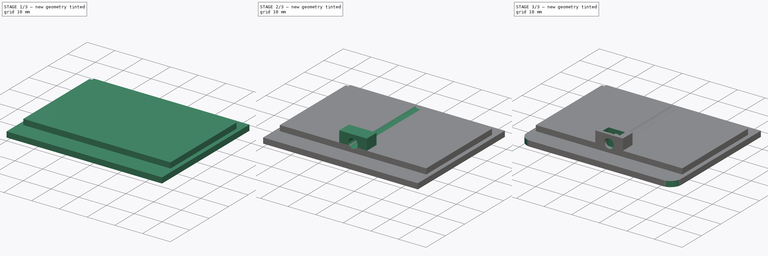
[diagram: build sequence overview — one tinted view per stage of 3, left to right]
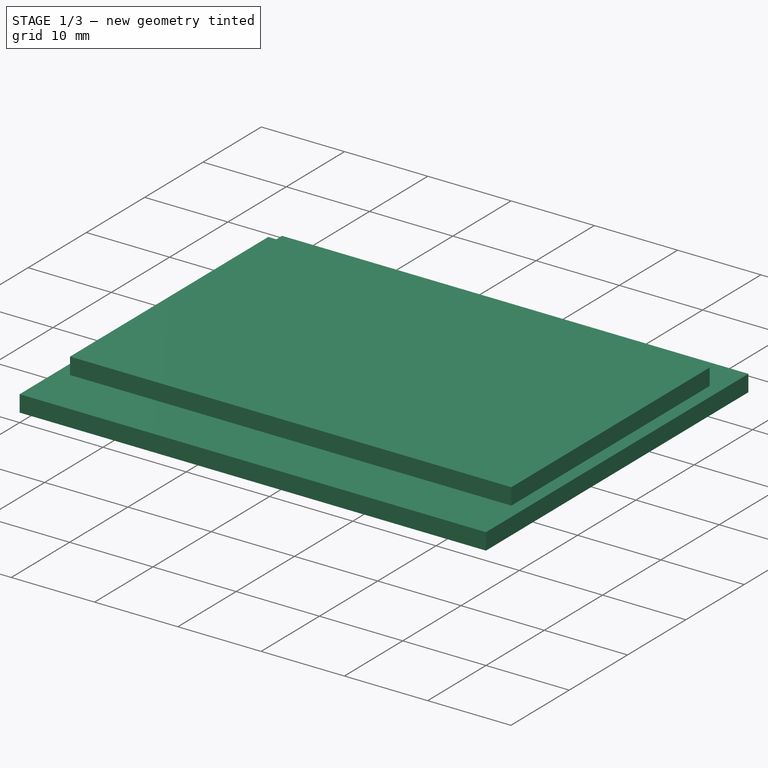
[diagram: stage 1 of 3 — iso view after this stage's code; geometry added in this stage tinted green]
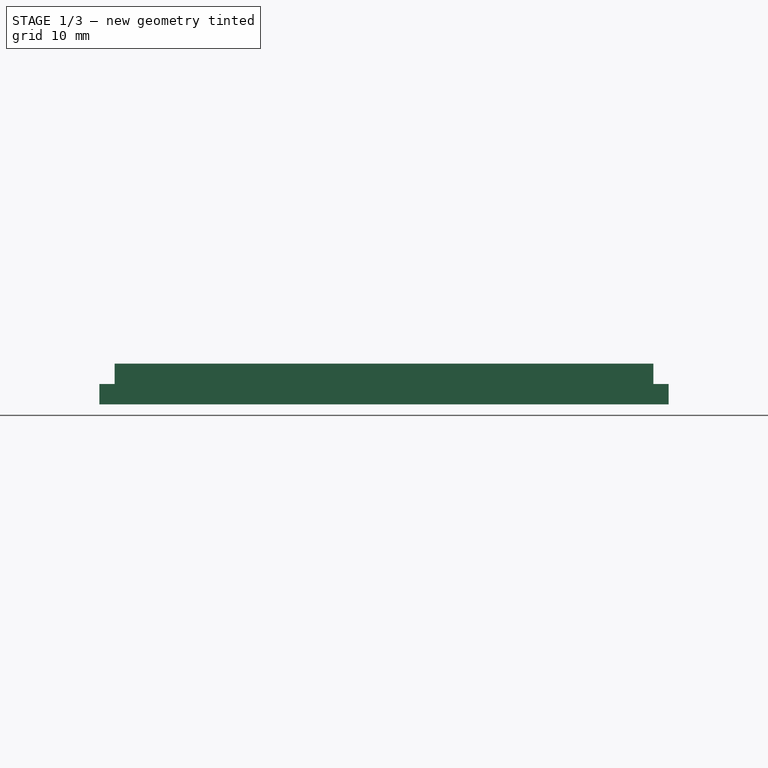
[diagram: stage 1 of 3 — front view after this stage's code; geometry added in this stage tinted green]
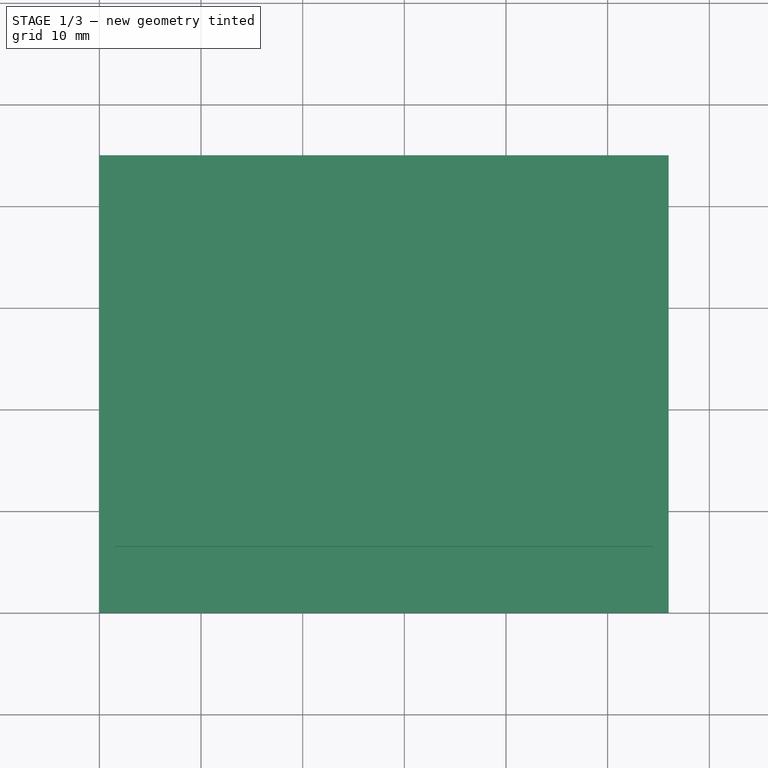
[diagram: stage 1 of 3 — top view after this stage's code; geometry added in this stage tinted green]
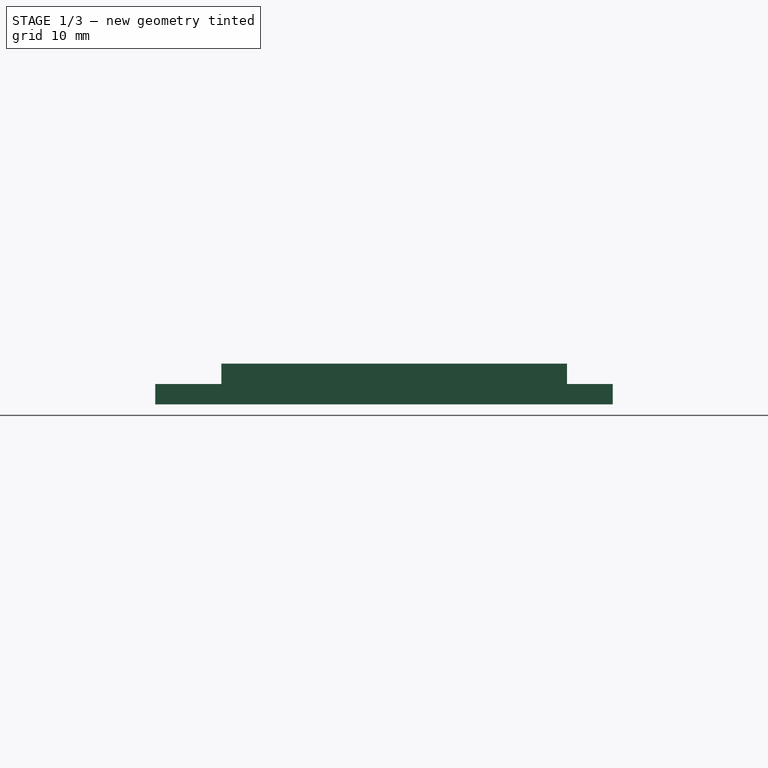
[diagram: stage 1 of 3 — right view after this stage's code; geometry added in this stage tinted green]
FCSTD DOCUMENT  (FreeCAD 0.17R13541 (Git))
Label: Tapa
License: All rights reserved
LicenseURL: http://en.wikipedia.org/wiki/All_rights_reserved
objects: Sketcher::SketchObject×5, PartDesign::Pad×3, PartDesign::Pocket×2, PartDesign::Fillet×1, PartDesign::Body×1
note: 17 computed .brp shape members not serialized (recipe doc carries the construction recipe); baked Part::Feature solids carry a one-line shape summary decoded from their .brp

FEATURE [Sketcher::SketchObject] Sketch
  MapMode = 5
  Support = -> [XY_Plane]
  sketch-geometry (4):
    g0: LineSegment StartX=0 StartY=0 StartZ=0 EndX=56 EndY=0 EndZ=0
    g1: LineSegment StartX=56 StartY=0 StartZ=0 EndX=56 EndY=45 EndZ=0
    g2: LineSegment StartX=56 StartY=45 StartZ=0 EndX=0 EndY=45 EndZ=0
    g3: LineSegment StartX=0 StartY=45 StartZ=0 EndX=0 EndY=0 EndZ=0
  constraints (11):
    c: Coincident(g0,g1)
    c: Coincident(g1,g2)
    c: Coincident(g2,g3)
    c: Coincident(g3,g0)
    c: Horizontal(g0)
    c: Horizontal(g2)
    c: Vertical(g1)
    c: Vertical(g3)
    c: Coincident(g0,g-1)
    c: DistanceX(g0,g0) = 56
    c: DistanceY(g1,g1) = 45
FEATURE [PartDesign::Pad] Pad  label="Base"
  Length = 2
  Length2 = 100
  Midplane = true
  Profile = -> Sketch
  Type = 0
FEATURE [Sketcher::SketchObject] Sketch001
  MapMode = 5
  Placement = pos=(0,0,1) rot=(0,0,1;0rad)
  Support = -> [Pad]
  sketch-geometry (4):
    g0: LineSegment StartX=1.5 StartY=40.5 StartZ=0 EndX=54.5 EndY=40.5 EndZ=0
    g1: LineSegment StartX=54.5 StartY=40.5 StartZ=0 EndX=54.5 EndY=6.5 EndZ=0
    g2: LineSegment StartX=54.5 StartY=6.5 StartZ=0 EndX=1.5 EndY=6.5 EndZ=0
    g3: LineSegment StartX=1.5 StartY=6.5 StartZ=0 EndX=1.5 EndY=40.5 EndZ=0
  constraints (12):
    c: Coincident(g0,g1)
    c: Coincident(g1,g2)
    c: Coincident(g2,g3)
    c: Coincident(g3,g0)
    c: Horizontal(g0)
    c: Horizontal(g2)
    c: Vertical(g1)
    c: Vertical(g3)
    c: DistanceY(g1,g1) = 34
    c: DistanceX(g0,g0) = 53
    c: DistanceY(g-1,g2) = 6.5
    c: DistanceX(g-1,g2) = 1.5
FEATURE [PartDesign::Pad] Pad001  label="Tope"
  BaseFeature = -> Pad
  Length = 2
  Length2 = 100
  Profile = -> Sketch001
  Type = 0
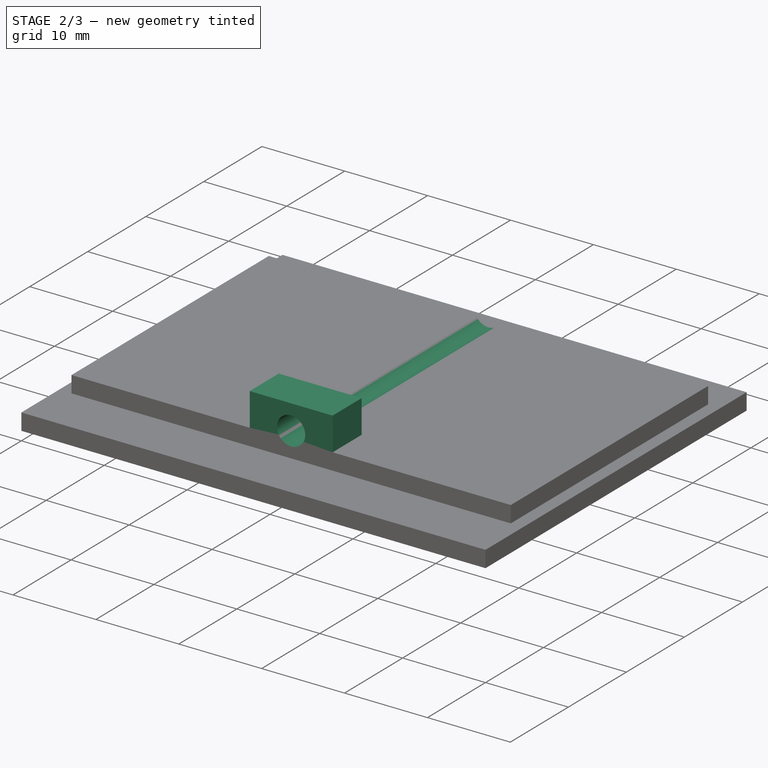
[diagram: stage 2 of 3 — iso view after this stage's code; geometry added in this stage tinted green]
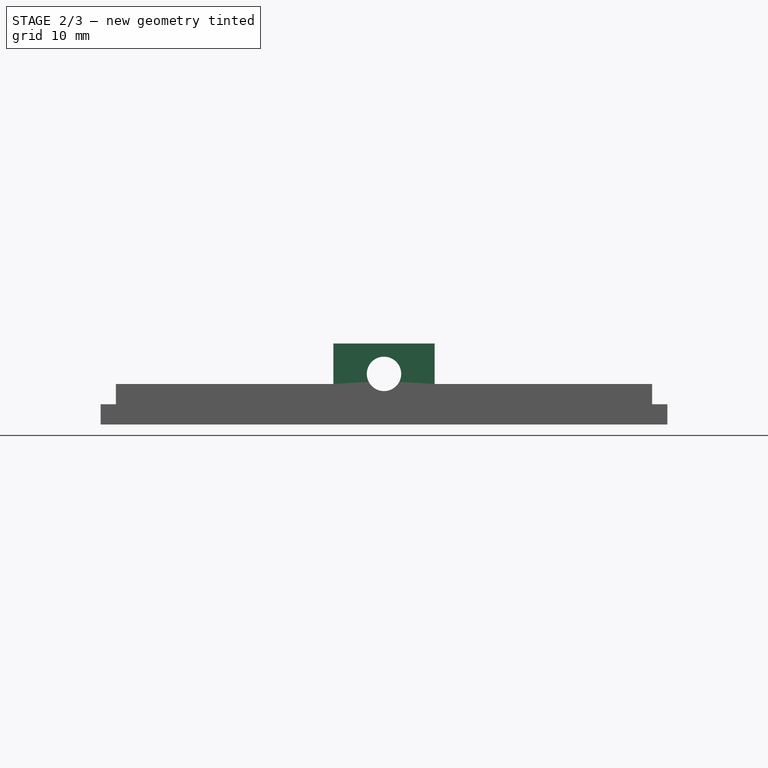
[diagram: stage 2 of 3 — front view after this stage's code; geometry added in this stage tinted green]
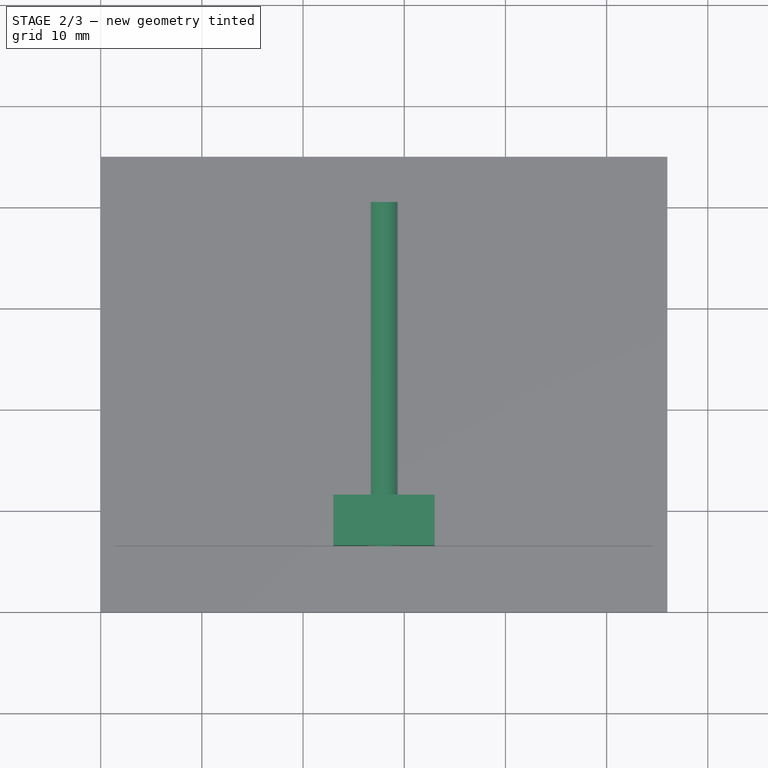
[diagram: stage 2 of 3 — top view after this stage's code; geometry added in this stage tinted green]
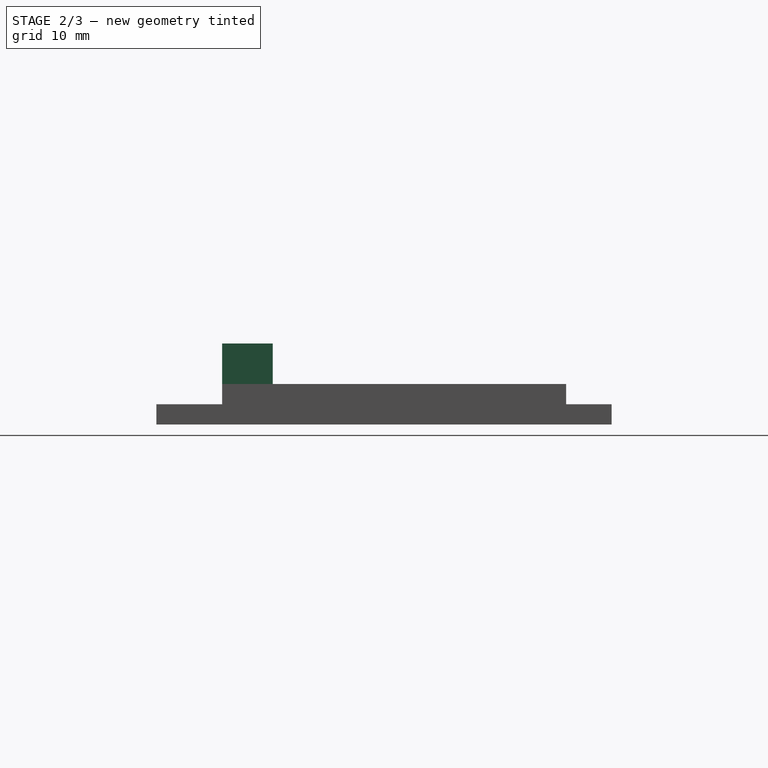
[diagram: stage 2 of 3 — right view after this stage's code; geometry added in this stage tinted green]
FEATURE [Sketcher::SketchObject] Sketch002
  MapMode = 5
  Placement = pos=(0,0,3) rot=(0,0,1;0rad)
  Support = -> [Pad001]
  sketch-geometry (4):
    g0: LineSegment StartX=23 StartY=11.5 StartZ=0 EndX=33 EndY=11.5 EndZ=0
    g1: LineSegment StartX=33 StartY=11.5 StartZ=0 EndX=33 EndY=6.5 EndZ=0
    g2: LineSegment StartX=33 StartY=6.5 StartZ=0 EndX=23 EndY=6.5 EndZ=0
    g3: LineSegment StartX=23 StartY=6.5 StartZ=0 EndX=23 EndY=11.5 EndZ=0
  constraints (12):
    c: Coincident(g0,g1)
    c: Coincident(g1,g2)
    c: Coincident(g2,g3)
    c: Coincident(g3,g0)
    c: Horizontal(g0)
    c: Horizontal(g2)
    c: Vertical(g1)
    c: Vertical(g3)
    c: DistanceX(g0,g0) = 10
    c: DistanceY(g3,g3) = 5
    c: DistanceY(g-1,g2) = 6.5
    c: DistanceX(g-1,g2) = 23
FEATURE [PartDesign::Pad] Pad002  label="Bloque"
  BaseFeature = -> Pad001
  Length = 4
  Length2 = 100
  Profile = -> Sketch002
  Type = 0
FEATURE [Sketcher::SketchObject] Sketch003
  MapMode = 5
  Placement = pos=(0,6.5,0) rot=(1,0,0;1.5708rad)
  Support = -> [Pad002]
  sketch-geometry (1):
    g0: Circle CenterX=28 CenterY=4 CenterZ=0 NormalX=0 NormalY=0 NormalZ=1 AngleXU=0 Radius=1.7
  constraints (3):
    c: DistanceX(g-1,g0) = 28
    c: DistanceY(g-1,g0) = 4
    c: Radius(g0) = 1.7
FEATURE [PartDesign::Pocket] Pocket  label="Tornillo"
  BaseFeature = -> Pad002
  Length = 20
  Length2 = 100
  Profile = -> Sketch003
  Type = 1
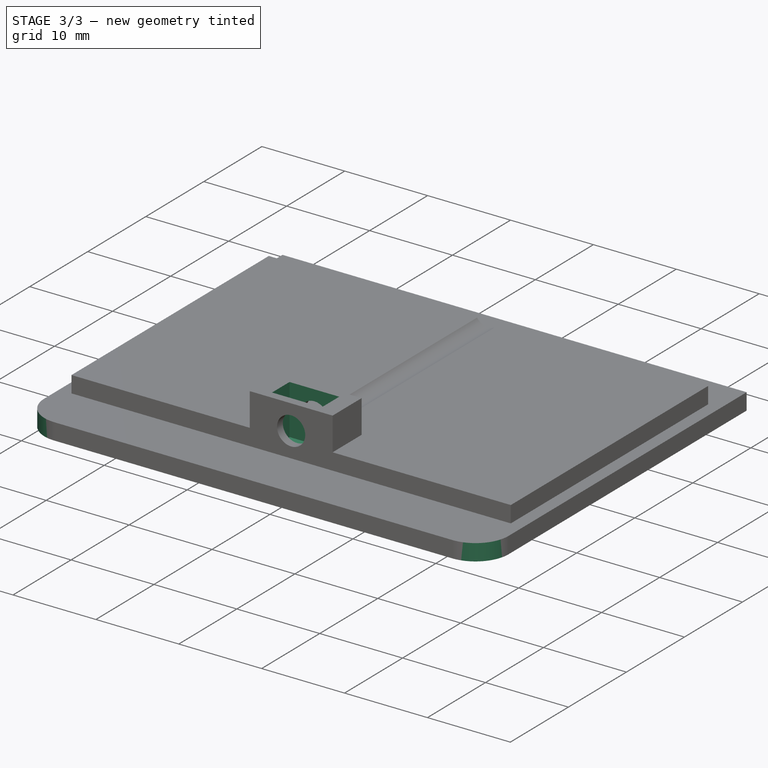
[diagram: stage 3 of 3 — iso view after this stage's code; geometry added in this stage tinted green]
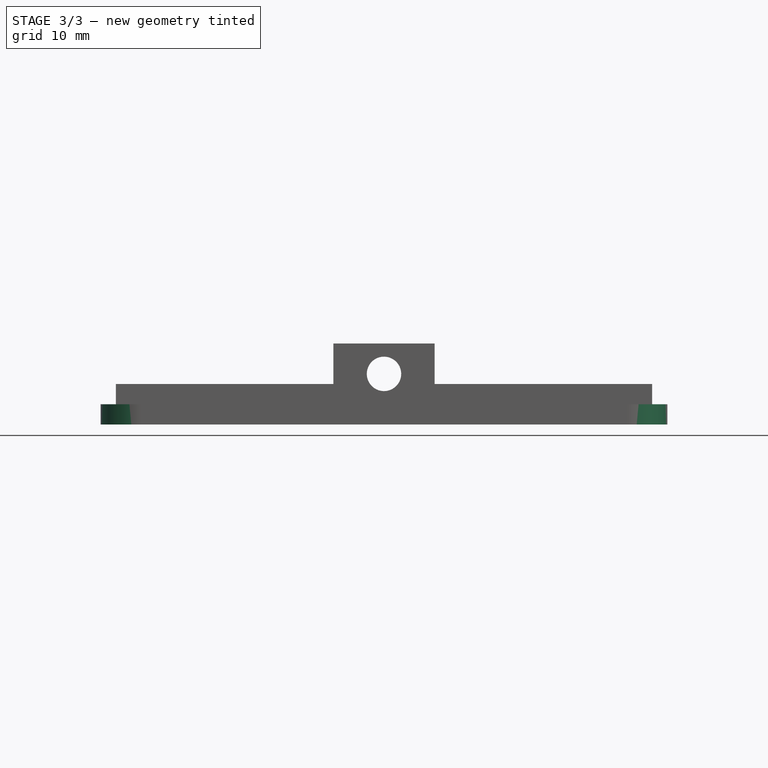
[diagram: stage 3 of 3 — front view after this stage's code; geometry added in this stage tinted green]
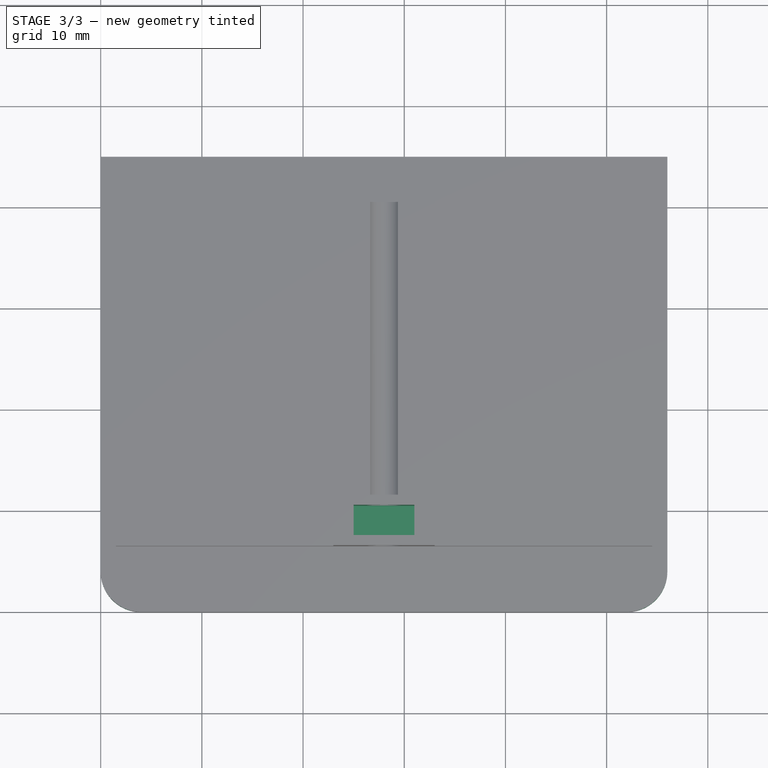
[diagram: stage 3 of 3 — top view after this stage's code; geometry added in this stage tinted green]
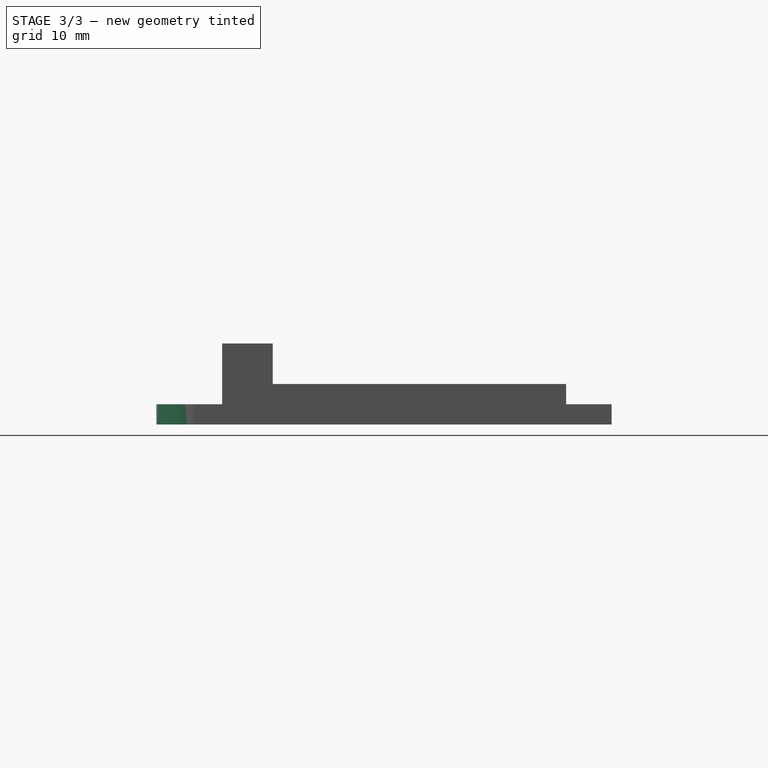
[diagram: stage 3 of 3 — right view after this stage's code; geometry added in this stage tinted green]
FEATURE [Sketcher::SketchObject] Sketch004
  MapMode = 5
  Placement = pos=(0,0,7) rot=(0,0,1;0rad)
  sketch-geometry (4):
    g0: LineSegment StartX=25 StartY=10.5 StartZ=0 EndX=31 EndY=10.5 EndZ=0
    g1: LineSegment StartX=31 StartY=10.5 StartZ=0 EndX=31 EndY=7.5 EndZ=0
    g2: LineSegment StartX=31 StartY=7.5 StartZ=0 EndX=25 EndY=7.5 EndZ=0
    g3: LineSegment StartX=25 StartY=7.5 StartZ=0 EndX=25 EndY=10.5 EndZ=0
  constraints (12):
    c: Coincident(g0,g1)
    c: Coincident(g1,g2)
    c: Coincident(g2,g3)
    c: Coincident(g3,g0)
    c: Horizontal(g0)
    c: Horizontal(g2)
    c: Vertical(g1)
    c: Vertical(g3)
    c: DistanceY(g1,g1) = 3
    c: DistanceX(g2,g2) = 6
    c: DistanceX(g-1,g2) = 25
    c: DistanceY(g-1,g2) = 7.5
FEATURE [PartDesign::Pocket] Pocket001  label="Tuerca"
  BaseFeature = -> Pocket
  Length = 6
  Length2 = 100
  Profile = -> Sketch004
  Type = 0
FEATURE [PartDesign::Fillet] Fillet
  Base = -> Pocket001 [Edge1,Edge2]
  BaseFeature = -> Pocket001
  Radius = 4
FEATURE [PartDesign::Body] Body
  Group = -> [Sketch,Pad,Sketch001,Pad001,Sketch002,Pad002,Sketch003,Pocket,Pocket001,Sketch004,Fillet]
  Origin = -> Origin
  Tip = -> Fillet
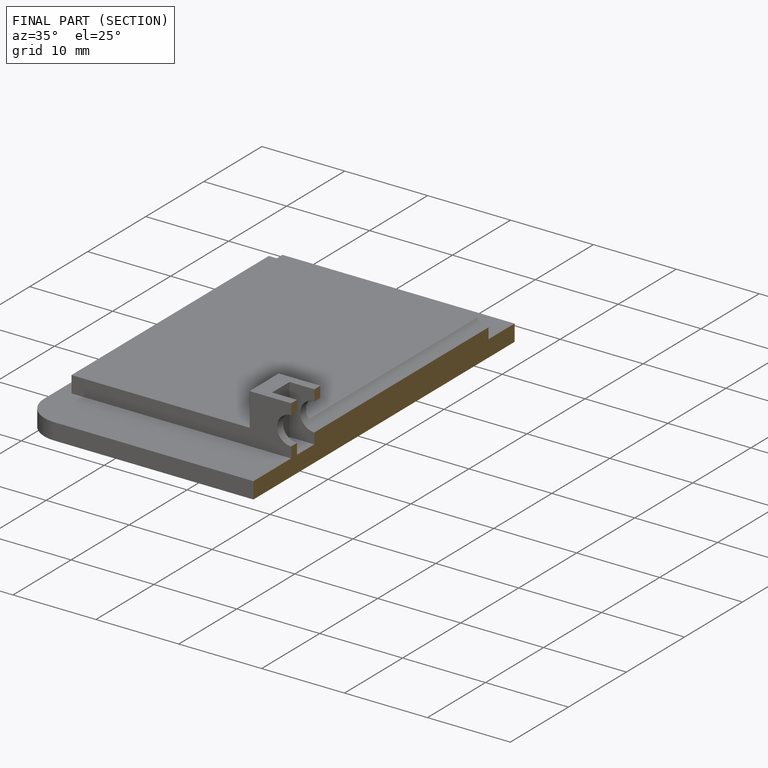
[diagram: finished part — half-section view (interior)]
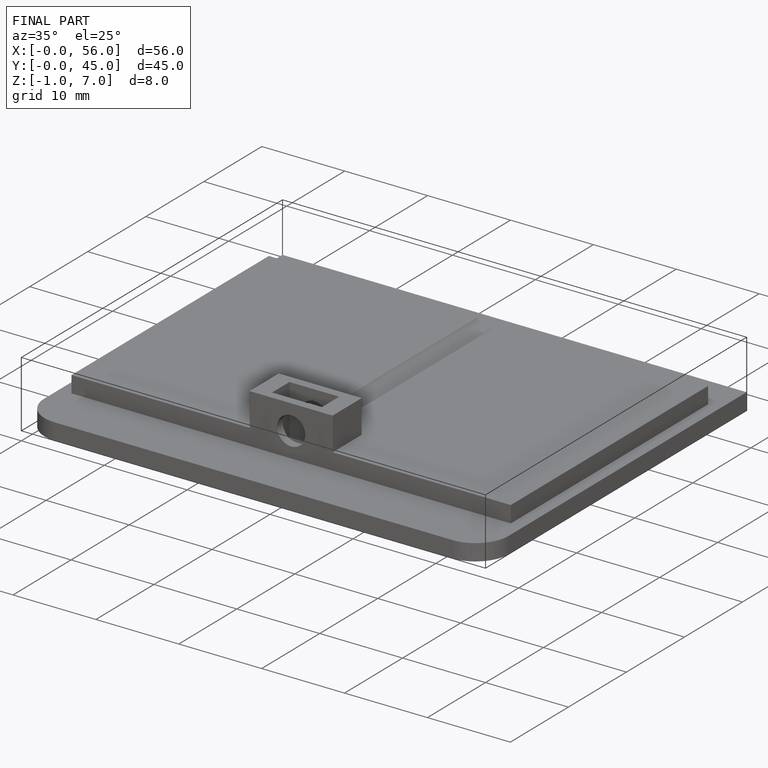
[diagram: finished part — iso view with bounding-box wireframe]
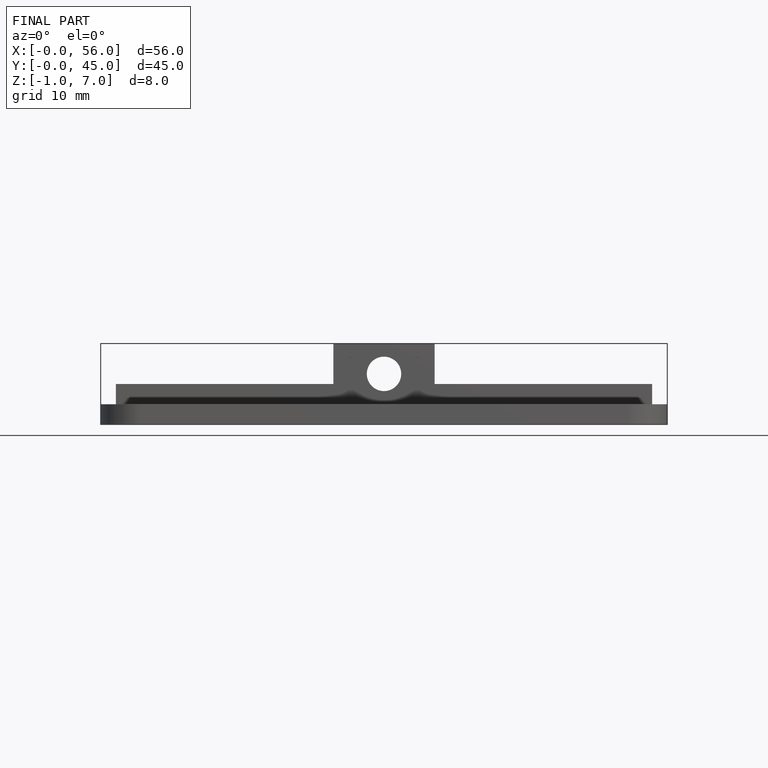
[diagram: finished part — front view with bounding-box wireframe]
